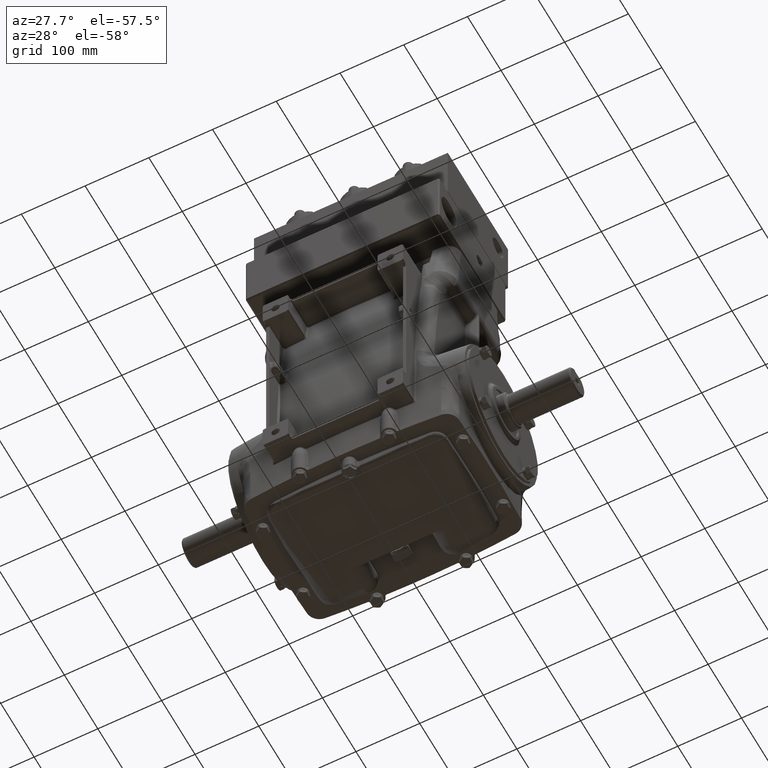
[diagram: clean part render]
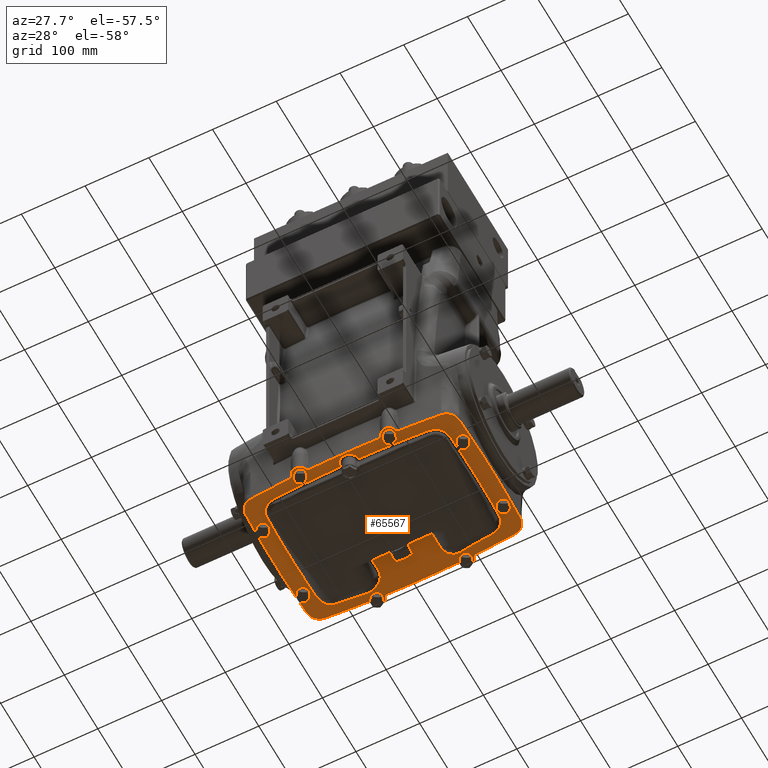
[diagram: same view with one face highlighted and labeled with its STEP entity id]
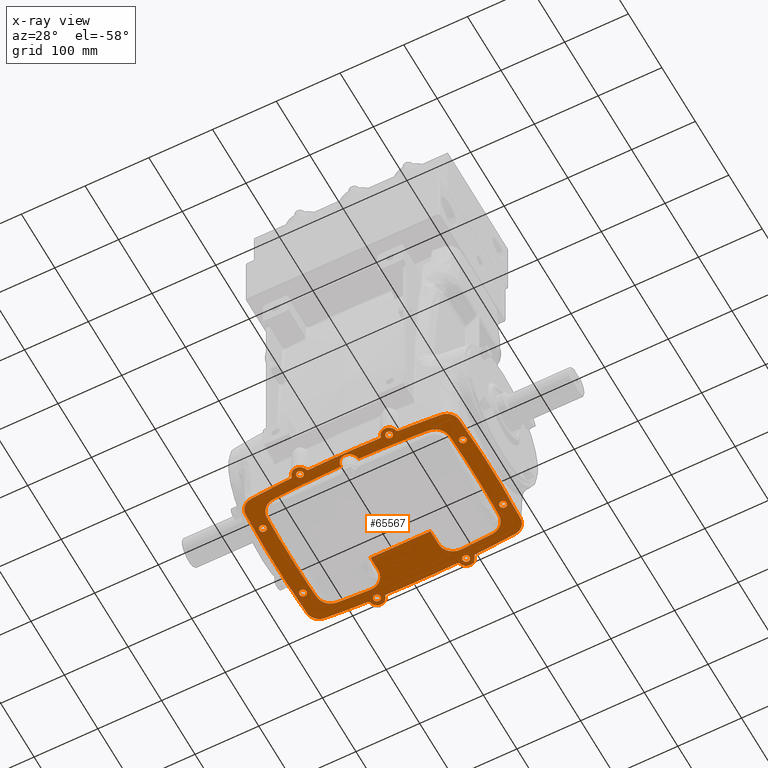
[diagram: x-ray of the same camera — body ghosted, the highlighted face saturated]
A machine part, auxiliary view. The second image highlights one B-rep face of the part: STEP entity #65567.
The next image is the same camera in x-ray: the body ghosted, the highlighted face saturated — about 0% of this face is hidden behind the body in this view.
In plain terms, the highlighted planar face has unit normal (0, -0, 1).
Its self-contained STEP definition (entity closure, byte-faithful):
#125 = ORIENTED_EDGE ( 'NONE', *, *, #73283, .T. ) ;
#469 = AXIS2_PLACEMENT_3D ( 'NONE', #3852, #22902, #40722 ) ;
#568 = CARTESIAN_POINT ( 'NONE',  ( -2.188326920457461355, 4.690670183305741148, -4.966535433070865757 ) ) ;
#848 = EDGE_CURVE ( 'NONE', #44584, #75379, #58259, .T. ) ;
#859 = DIRECTION ( 'NONE',  ( -1.000000000000000000, 0.000000000000000000, 0.000000000000000000 ) ) ;
#914 = CIRCLE ( 'NONE', #33233, 0.2165354330708663400 ) ;
#1171 = DIRECTION ( 'NONE',  ( 0.000000000000000000, -1.000000000000000000, -1.876433281056602322E-16 ) ) ;
#1330 = CARTESIAN_POINT ( 'NONE',  ( 1.850393700787401619, 1.963535253680850801, -4.966535433070865757 ) ) ;
#1344 = DIRECTION ( 'NONE',  ( 0.000000000000000000, -1.000000000000000000, 0.000000000000000000 ) ) ;
#1610 = VERTEX_POINT ( 'NONE', #40088 ) ;
#1611 = EDGE_CURVE ( 'NONE', #11891, #48762, #33780, .T. ) ;
#1652 = CIRCLE ( 'NONE', #53442, 70.86614173228348079 ) ;
#1884 = CIRCLE ( 'NONE', #32942, 70.86614173228346658 ) ;
#1887 = VERTEX_POINT ( 'NONE', #58240 ) ;
#2000 = ORIENTED_EDGE ( 'NONE', *, *, #34859, .T. ) ;
#2031 = EDGE_LOOP ( 'NONE', ( #49041, #19930 ) ) ;
#2227 = ORIENTED_EDGE ( 'NONE', *, *, #61398, .T. ) ;
#2432 = DIRECTION ( 'NONE',  ( -1.000000000000000000, 0.000000000000000000, 0.000000000000000000 ) ) ;
#2808 = ORIENTED_EDGE ( 'NONE', *, *, #78883, .T. ) ;
#2905 = VERTEX_POINT ( 'NONE', #80008 ) ;
#3014 = CIRCLE ( 'NONE', #65146, 0.2165354330708663400 ) ;
#3033 = DIRECTION ( 'NONE',  ( -1.000000000000000000, 0.000000000000000000, 0.000000000000000000 ) ) ;
#3112 = ORIENTED_EDGE ( 'NONE', *, *, #67851, .T. ) ;
#3489 = DIRECTION ( 'NONE',  ( -1.000000000000000000, 0.000000000000000000, 0.000000000000000000 ) ) ;
#3550 = ORIENTED_EDGE ( 'NONE', *, *, #53586, .T. ) ;
#3602 = DIRECTION ( 'NONE',  ( 0.000000000000000000, 0.000000000000000000, 1.000000000000000000 ) ) ;
#3807 = AXIS2_PLACEMENT_3D ( 'NONE', #23560, #11799, #28437 ) ;
#3833 = EDGE_LOOP ( 'NONE', ( #31478, #71639 ) ) ;
#3852 = CARTESIAN_POINT ( 'NONE',  ( -5.814147631272645000, -3.577293084386023114, -4.966535433070866645 ) ) ;
#3864 = CIRCLE ( 'NONE', #3807, 0.9055118110236217710 ) ;
#4589 = DIRECTION ( 'NONE',  ( -1.000000000000000000, 0.000000000000000000, 0.000000000000000000 ) ) ;
#4672 = CARTESIAN_POINT ( 'NONE',  ( 5.964566929133858331, 2.362204724409448620, -4.966535433070866645 ) ) ;
#4773 = AXIS2_PLACEMENT_3D ( 'NONE', #30553, #68212, #79958 ) ;
#5260 = CIRCLE ( 'NONE', #50533, 0.2165354330708663400 ) ;
#5393 = DIRECTION ( 'NONE',  ( 0.000000000000000000, -1.840508367162051595E-16, 1.000000000000000000 ) ) ;
#5597 = AXIS2_PLACEMENT_3D ( 'NONE', #13962, #38656, #57304 ) ;
#5645 = AXIS2_PLACEMENT_3D ( 'NONE', #48984, #42889, #23067 ) ;
#5699 = CIRCLE ( 'NONE', #75517, 0.2165354330708663400 ) ;
#5814 = CIRCLE ( 'NONE', #40673, 70.86614173228346658 ) ;
#5891 = VERTEX_POINT ( 'NONE', #13730 ) ;
#6125 = CARTESIAN_POINT ( 'NONE',  ( 0.000000000000000000, -66.25984251968503713, -4.966535433070879080 ) ) ;
#6419 = DIRECTION ( 'NONE',  ( -1.000000000000000000, 0.000000000000000000, 0.000000000000000000 ) ) ;
#6481 = CARTESIAN_POINT ( 'NONE',  ( -5.669151336525588114, 2.365579684614949052, -4.966535433070865757 ) ) ;
#6515 = DIRECTION ( 'NONE',  ( 0.000000000000000000, -1.000000000000000000, -1.868014062745636904E-16 ) ) ;
#6762 = DIRECTION ( 'NONE',  ( 1.000000000000000000, 0.000000000000000000, 0.000000000000000000 ) ) ;
#7053 = CARTESIAN_POINT ( 'NONE',  ( 4.421030236062490459, 3.797650276213888620, -4.966535433070865757 ) ) ;
#7071 = EDGE_CURVE ( 'NONE', #78797, #57188, #21784, .T. ) ;
#7156 = VERTEX_POINT ( 'NONE', #70778 ) ;
#7687 = ORIENTED_EDGE ( 'NONE', *, *, #73489, .F. ) ;
#7773 = ORIENTED_EDGE ( 'NONE', *, *, #75942, .T. ) ;
#7869 = CARTESIAN_POINT ( 'NONE',  ( -3.334447447247841367, 4.646049250672071196, -4.966535433070865757 ) ) ;
#8009 = DIRECTION ( 'NONE',  ( 0.000000000000000000, 0.000000000000000000, 1.000000000000000000 ) ) ;
#8071 = DIRECTION ( 'NONE',  ( 1.000000000000000000, 0.000000000000000000, 0.000000000000000000 ) ) ;
#8341 = EDGE_CURVE ( 'NONE', #57188, #78797, #46170, .T. ) ;
#8563 = CARTESIAN_POINT ( 'NONE',  ( 3.334447447247962604, 4.646049250672073860, -4.966535433070865757 ) ) ;
#8600 = EDGE_CURVE ( 'NONE', #40365, #60395, #57892, .T. ) ;
#8838 = ORIENTED_EDGE ( 'NONE', *, *, #28282, .T. ) ;
#8913 = DIRECTION ( 'NONE',  ( 0.000000000000000000, -1.840508367162051595E-16, 1.000000000000000000 ) ) ;
#9261 = ORIENTED_EDGE ( 'NONE', *, *, #70944, .T. ) ;
#9600 = EDGE_CURVE ( 'NONE', #44584, #25446, #54107, .T. ) ;
#10029 = DIRECTION ( 'NONE',  ( -0.000000000000000000, -0.000000000000000000, -1.000000000000000000 ) ) ;
#10275 = CARTESIAN_POINT ( 'NONE',  ( 5.879475132747619348, -4.361980001285704844, -4.966535433070866645 ) ) ;
#10314 = VERTEX_POINT ( 'NONE', #36026 ) ;
#10466 = ORIENTED_EDGE ( 'NONE', *, *, #27851, .T. ) ;
#10566 = DIRECTION ( 'NONE',  ( 1.000000000000000000, 0.000000000000000000, 0.000000000000000000 ) ) ;
#10578 = EDGE_LOOP ( 'NONE', ( #74037, #10466 ) ) ;
#10638 = EDGE_CURVE ( 'NONE', #57920, #30326, #77063, .T. ) ;
#10877 = CARTESIAN_POINT ( 'NONE',  ( -5.879475132747624677, 4.361980001285700403, -4.966535433070866645 ) ) ;
#10995 = ORIENTED_EDGE ( 'NONE', *, *, #67562, .T. ) ;
#11043 = EDGE_CURVE ( 'NONE', #1887, #64088, #12682, .T. ) ;
#11128 = CARTESIAN_POINT ( 'NONE',  ( 2.188326920457461355, -4.690670183305741148, -4.966535433070867533 ) ) ;
#11154 = CIRCLE ( 'NONE', #70708, 0.7874015748031557571 ) ;
#11504 = EDGE_CURVE ( 'NONE', #51423, #65314, #68300, .T. ) ;
#11737 = AXIS2_PLACEMENT_3D ( 'NONE', #7869, #52426, #26503 ) ;
#11799 = DIRECTION ( 'NONE',  ( 0.000000000000000000, -1.840508367162051595E-16, 1.000000000000000000 ) ) ;
#11891 = VERTEX_POINT ( 'NONE', #46021 ) ;
#11892 = CARTESIAN_POINT ( 'NONE',  ( -4.805447959170563443, -3.772332051060039326, -4.966535433070866645 ) ) ;
#11975 = VERTEX_POINT ( 'NONE', #54508 ) ;
#12229 = DIRECTION ( 'NONE',  ( -0.000000000000000000, -0.000000000000000000, -1.000000000000000000 ) ) ;
#12240 = EDGE_CURVE ( 'NONE', #40907, #74735, #30894, .T. ) ;
#12347 = DIRECTION ( 'NONE',  ( 0.000000000000000000, -1.840508367162051595E-16, 1.000000000000000000 ) ) ;
#12682 = CIRCLE ( 'NONE', #64385, 0.7874015748031557571 ) ;
#12697 = DIRECTION ( 'NONE',  ( 0.000000000000000000, 0.000000000000000000, 1.000000000000000000 ) ) ;
#12704 = DIRECTION ( 'NONE',  ( 0.000000000000000000, -1.000000000000000000, -1.840508367162051349E-16 ) ) ;
#12757 = VERTEX_POINT ( 'NONE', #4672 ) ;
#12858 = CARTESIAN_POINT ( 'NONE',  ( -2.755905511811023612, -4.527559055118110187, -4.966535433070866645 ) ) ;
#12895 = ORIENTED_EDGE ( 'NONE', *, *, #18476, .T. ) ;
#12909 = VERTEX_POINT ( 'NONE', #68241 ) ;
#12993 = DIRECTION ( 'NONE',  ( -0.000000000000000000, -0.000000000000000000, -1.000000000000000000 ) ) ;
#12996 = FACE_BOUND ( 'NONE', #2031, .T. ) ;
#13003 = ORIENTED_EDGE ( 'NONE', *, *, #848, .F. ) ;
#13092 = DIRECTION ( 'NONE',  ( 1.000000000000000000, 0.000000000000000000, 0.000000000000000000 ) ) ;
#13113 = DIRECTION ( 'NONE',  ( 0.000000000000000000, -1.000000000000000000, 0.000000000000000000 ) ) ;
#13203 = CARTESIAN_POINT ( 'NONE',  ( 6.397637795275591621, -2.362204724409448620, -4.966535433070866645 ) ) ;
#13204 = EDGE_LOOP ( 'NONE', ( #29628, #58196 ) ) ;
#13330 = AXIS2_PLACEMENT_3D ( 'NONE', #14726, #69812, #39434 ) ;
#13541 = ORIENTED_EDGE ( 'NONE', *, *, #39967, .T. ) ;
#13589 = ORIENTED_EDGE ( 'NONE', *, *, #53675, .F. ) ;
#13730 = CARTESIAN_POINT ( 'NONE',  ( 3.328899281778211261, -4.528069397476806479, -4.966535433070866645 ) ) ;
#13870 = CARTESIAN_POINT ( 'NONE',  ( 3.218739060160478171, -4.622351211561278816, -4.966535433070866645 ) ) ;
#13962 = CARTESIAN_POINT ( 'NONE',  ( -2.755905511811023612, -4.527559055118110187, -4.966535433070866645 ) ) ;
#14031 = CARTESIAN_POINT ( 'NONE',  ( -1.850393700787401619, 2.049347363287782997, -4.966535433070865757 ) ) ;
#14056 = VECTOR ( 'NONE', #20400, 39.37007874015748143 ) ;
#14282 = CARTESIAN_POINT ( 'NONE',  ( -2.791920186113100222, 3.881464759763229910, -4.966535433070865757 ) ) ;
#14584 = CARTESIAN_POINT ( 'NONE',  ( 0.000000000000000000, 66.25984251968503713, -4.966535433070866645 ) ) ;
#14588 = CARTESIAN_POINT ( 'NONE',  ( -1.968503937007874072, 3.818897637795274580, -4.966535433070865757 ) ) ;
#14609 = CIRCLE ( 'NONE', #31435, 0.1181102362204725503 ) ;
#14621 = AXIS2_PLACEMENT_3D ( 'NONE', #37194, #41388, #61932 ) ;
#14726 = CARTESIAN_POINT ( 'NONE',  ( -6.181102362204725864, -2.362204724409448620, -4.966535433070866645 ) ) ;
#15015 = CARTESIAN_POINT ( 'NONE',  ( -4.680861403990168590, 3.780556803092995466, -4.966535433070865757 ) ) ;
#15112 = CARTESIAN_POINT ( 'NONE',  ( -1.850393700787401619, 2.976669433107418605, -4.966535433070865757 ) ) ;
#15521 = EDGE_CURVE ( 'NONE', #26118, #19099, #55822, .T. ) ;
#15625 = DIRECTION ( 'NONE',  ( 0.000000000000000000, -1.840508367162051595E-16, 1.000000000000000000 ) ) ;
#15628 = CARTESIAN_POINT ( 'NONE',  ( 2.184685777495090075, 4.572616085630212268, -4.966535433070866645 ) ) ;
#15724 = AXIS2_PLACEMENT_3D ( 'NONE', #34076, #59599, #10566 ) ;
#15783 = DIRECTION ( 'NONE',  ( -0.000000000000000000, -0.000000000000000000, -1.000000000000000000 ) ) ;
#16190 = CIRCLE ( 'NONE', #78191, 0.9044357343902614810 ) ;
#16199 = CARTESIAN_POINT ( 'NONE',  ( 6.181102362204725864, -2.362204724409448620, -4.966535433070866645 ) ) ;
#16331 = DIRECTION ( 'NONE',  ( 0.000000000000000000, -1.840508367162051595E-16, 1.000000000000000000 ) ) ;
#16961 = ORIENTED_EDGE ( 'NONE', *, *, #58192, .T. ) ;
#16996 = ORIENTED_EDGE ( 'NONE', *, *, #29741, .T. ) ;
#17145 = CARTESIAN_POINT ( 'NONE',  ( 3.334447447247841367, -4.646049250672071196, -4.966535433070867533 ) ) ;
#17472 = CARTESIAN_POINT ( 'NONE',  ( -5.658791766379538402, 2.636854687209666981, -4.966535433070865757 ) ) ;
#17489 = CIRCLE ( 'NONE', #38139, 0.2165354330708663400 ) ;
#17690 = ORIENTED_EDGE ( 'NONE', *, *, #46238, .T. ) ;
#17708 = DIRECTION ( 'NONE',  ( -0.000000000000000000, -0.000000000000000000, -1.000000000000000000 ) ) ;
#17792 = VERTEX_POINT ( 'NONE', #77012 ) ;
#17882 = ORIENTED_EDGE ( 'NONE', *, *, #73342, .T. ) ;
#17947 = ORIENTED_EDGE ( 'NONE', *, *, #49992, .F. ) ;
#17990 = CARTESIAN_POINT ( 'NONE',  ( 5.647048271386203133, 2.908078252959397592, -4.966535433070865757 ) ) ;
#18007 = AXIS2_PLACEMENT_3D ( 'NONE', #46560, #3602, #53838 ) ;
#18186 = CARTESIAN_POINT ( 'NONE',  ( -6.600522642258374262, 3.617487388704967888, -4.966535433070866645 ) ) ;
#18363 = EDGE_LOOP ( 'NONE', ( #22792, #8838 ) ) ;
#18462 = DIRECTION ( 'NONE',  ( -1.000000000000000000, 0.000000000000000000, 0.000000000000000000 ) ) ;
#18476 = EDGE_CURVE ( 'NONE', #69947, #52454, #46842, .T. ) ;
#18675 = CARTESIAN_POINT ( 'NONE',  ( -2.972440944881889813, 4.527559055118110187, -4.966535433070866645 ) ) ;
#18985 = DIRECTION ( 'NONE',  ( 0.000000000000000000, -1.840508367162051595E-16, 1.000000000000000000 ) ) ;
#19099 = VERTEX_POINT ( 'NONE', #53582 ) ;
#19660 = ORIENTED_EDGE ( 'NONE', *, *, #7071, .F. ) ;
#19719 = CIRCLE ( 'NONE', #39134, 0.9055118110236221041 ) ;
#19754 = DIRECTION ( 'NONE',  ( -1.000000000000000000, 0.000000000000000000, 0.000000000000000000 ) ) ;
#19832 = ORIENTED_EDGE ( 'NONE', *, *, #46403, .T. ) ;
#19930 = ORIENTED_EDGE ( 'NONE', *, *, #26497, .T. ) ;
#20400 = DIRECTION ( 'NONE',  ( -0.000000000000000000, 1.000000000000000000, 1.840508367162051349E-16 ) ) ;
#20629 = ORIENTED_EDGE ( 'NONE', *, *, #8341, .F. ) ;
#20679 = FACE_BOUND ( 'NONE', #3833, .T. ) ;
#20703 = CARTESIAN_POINT ( 'NONE',  ( -4.421030236062486907, 3.797650276213888620, -4.966535433070865757 ) ) ;
#20880 = CIRCLE ( 'NONE', #15724, 0.4724409448818899238 ) ;
#21211 = CIRCLE ( 'NONE', #5645, 0.2165354330708663400 ) ;
#21732 = CARTESIAN_POINT ( 'NONE',  ( 5.647048271386203133, 2.908078252959397592, -4.966535433070865757 ) ) ;
#21744 = DIRECTION ( 'NONE',  ( -0.000000000000000000, -0.000000000000000000, -1.000000000000000000 ) ) ;
#21775 = CIRCLE ( 'NONE', #42469, 70.19685039370077106 ) ;
#21784 = CIRCLE ( 'NONE', #28255, 0.2165354330708663400 ) ;
#21953 = VERTEX_POINT ( 'NONE', #78930 ) ;
#22349 = VERTEX_POINT ( 'NONE', #61440 ) ;
#22627 = AXIS2_PLACEMENT_3D ( 'NONE', #74997, #32080, #53140 ) ;
#22792 = ORIENTED_EDGE ( 'NONE', *, *, #8600, .T. ) ;
#22845 = AXIS2_PLACEMENT_3D ( 'NONE', #69362, #68574, #13092 ) ;
#22902 = DIRECTION ( 'NONE',  ( 0.000000000000000000, 0.000000000000000000, 1.000000000000000000 ) ) ;
#22964 = DIRECTION ( 'NONE',  ( 1.000000000000000000, 0.000000000000000000, 0.000000000000000000 ) ) ;
#23067 = DIRECTION ( 'NONE',  ( 1.000000000000000000, 0.000000000000000000, 0.000000000000000000 ) ) ;
#23119 = CIRCLE ( 'NONE', #68379, 0.5511811023622046335 ) ;
#23132 = ORIENTED_EDGE ( 'NONE', *, *, #36138, .T. ) ;
#23256 = DIRECTION ( 'NONE',  ( -1.000000000000000000, -0.000000000000000000, 0.000000000000000000 ) ) ;
#23560 = CARTESIAN_POINT ( 'NONE',  ( 4.743459567100500429, -2.868944493501353499, -4.966535433070866645 ) ) ;
#23742 = CARTESIAN_POINT ( 'NONE',  ( -5.647048271386203133, 2.908078252959397592, -4.966535433070865757 ) ) ;
#23757 = VERTEX_POINT ( 'NONE', #50582 ) ;
#23858 = ORIENTED_EDGE ( 'NONE', *, *, #48441, .F. ) ;
#24052 = VERTEX_POINT ( 'NONE', #13203 ) ;
#24516 = DIRECTION ( 'NONE',  ( 0.000000000000000000, -1.000000000000000000, 0.000000000000000000 ) ) ;
#24838 = VERTEX_POINT ( 'NONE', #37905 ) ;
#25110 = EDGE_CURVE ( 'NONE', #47525, #33996, #14609, .T. ) ;
#25303 = ORIENTED_EDGE ( 'NONE', *, *, #67246, .T. ) ;
#25446 = VERTEX_POINT ( 'NONE', #47910 ) ;
#25495 = ORIENTED_EDGE ( 'NONE', *, *, #10638, .T. ) ;
#25512 = DIRECTION ( 'NONE',  ( 0.000000000000000000, 0.000000000000000000, 1.000000000000000000 ) ) ;
#25636 = CARTESIAN_POINT ( 'NONE',  ( -5.648187776011354799, -2.906607577605502257, -4.966535433070866645 ) ) ;
#25647 = DIRECTION ( 'NONE',  ( 0.000000000000000000, -1.000000000000000000, -1.876433281056602322E-16 ) ) ;
#25693 = AXIS2_PLACEMENT_3D ( 'NONE', #14588, #50261, #44577 ) ;
#25803 = EDGE_CURVE ( 'NONE', #49282, #47525, #34094, .T. ) ;
#25884 = EDGE_LOOP ( 'NONE', ( #47802, #28352, #72604, #25303, #73336, #37086, #17690, #62492, #62848, #49409, #38493, #54427, #13589, #10995, #63889, #16996, #72837, #71476, #68748, #7687, #23858, #3550, #13003, #53822 ) ) ;
#26118 = VERTEX_POINT ( 'NONE', #15628 ) ;
#26337 = DIRECTION ( 'NONE',  ( 0.000000000000000000, -1.000000000000000000, -1.868014062745636904E-16 ) ) ;
#26497 = EDGE_CURVE ( 'NONE', #22349, #68828, #76628, .T. ) ;
#26503 = DIRECTION ( 'NONE',  ( 0.000000000000000000, -1.000000000000000000, 0.000000000000000000 ) ) ;
#26513 = AXIS2_PLACEMENT_3D ( 'NONE', #67902, #78827, #22964 ) ;
#26624 = CARTESIAN_POINT ( 'NONE',  ( -2.755905511811023612, 4.527559055118110187, -4.966535433070866645 ) ) ;
#26625 = DIRECTION ( 'NONE',  ( -0.000000000000000000, -0.000000000000000000, -1.000000000000000000 ) ) ;
#26767 = CARTESIAN_POINT ( 'NONE',  ( 5.814147631272645000, -3.577293084386023114, -4.966535433070866645 ) ) ;
#26823 = VERTEX_POINT ( 'NONE', #28389 ) ;
#26934 = EDGE_CURVE ( 'NONE', #68828, #22349, #27562, .T. ) ;
#27199 = DIRECTION ( 'NONE',  ( 0.000000000000000000, -1.840508367162051595E-16, 1.000000000000000000 ) ) ;
#27341 = CARTESIAN_POINT ( 'NONE',  ( -4.743459567100491547, 2.868944493501349058, -4.966535433070865757 ) ) ;
#27562 = CIRCLE ( 'NONE', #77957, 0.2165354330708663400 ) ;
#27686 = DIRECTION ( 'NONE',  ( 0.000000000000000000, -1.000000000000000000, 0.000000000000000000 ) ) ;
#27851 = EDGE_CURVE ( 'NONE', #67507, #7156, #21211, .T. ) ;
#27857 = DIRECTION ( 'NONE',  ( 1.000000000000000000, 0.000000000000000000, 0.000000000000000000 ) ) ;
#28255 = AXIS2_PLACEMENT_3D ( 'NONE', #68479, #12993, #37680 ) ;
#28265 = CARTESIAN_POINT ( 'NONE',  ( -2.755905511811023612, 4.527559055118110187, -4.966535433070866645 ) ) ;
#28282 = EDGE_CURVE ( 'NONE', #60395, #40365, #5699, .T. ) ;
#28352 = ORIENTED_EDGE ( 'NONE', *, *, #15521, .T. ) ;
#28380 = CARTESIAN_POINT ( 'NONE',  ( -5.964566929133859219, -2.362204724409448620, -4.966535433070866645 ) ) ;
#28389 = CARTESIAN_POINT ( 'NONE',  ( -4.810699160858283641, 3.770877326185321898, -4.966535433070865757 ) ) ;
#28437 = DIRECTION ( 'NONE',  ( 0.000000000000000000, -1.000000000000000000, 0.000000000000000000 ) ) ;
#28506 = CIRCLE ( 'NONE', #11737, 0.1181102362204725503 ) ;
#28593 = CARTESIAN_POINT ( 'NONE',  ( 0.000000000000000000, -4.488188976377952777, -4.966535433070410122 ) ) ;
#28753 = CARTESIAN_POINT ( 'NONE',  ( 2.755905511811023612, 4.527559055118110187, -4.966535433070866645 ) ) ;
#28911 = CARTESIAN_POINT ( 'NONE',  ( 0.000000000000000000, 66.25984251968503713, -4.966535433070866645 ) ) ;
#28943 = CARTESIAN_POINT ( 'NONE',  ( 5.814147631272645000, 3.577293084386023114, -4.966535433070866645 ) ) ;
#29091 = EDGE_CURVE ( 'NONE', #23757, #55862, #5814, .T. ) ;
#29318 = CARTESIAN_POINT ( 'NONE',  ( 5.669151336525589002, 2.365579684614937950, -4.966535433070865757 ) ) ;
#29628 = ORIENTED_EDGE ( 'NONE', *, *, #74135, .F. ) ;
#29741 = EDGE_CURVE ( 'NONE', #41375, #48762, #75751, .T. ) ;
#30309 = CARTESIAN_POINT ( 'NONE',  ( -3.328899281778332053, -4.528069397476797597, -4.966535433070866645 ) ) ;
#30326 = VERTEX_POINT ( 'NONE', #76764 ) ;
#30342 = DIRECTION ( 'NONE',  ( 0.000000000000000000, -1.000000000000000000, 0.000000000000000000 ) ) ;
#30553 = CARTESIAN_POINT ( 'NONE',  ( -4.743459567100500429, -2.868944493501353499, -4.966535433070866645 ) ) ;
#30894 = CIRCLE ( 'NONE', #36029, 70.19685039370077106 ) ;
#31435 = AXIS2_PLACEMENT_3D ( 'NONE', #11128, #35828, #49991 ) ;
#31478 = ORIENTED_EDGE ( 'NONE', *, *, #40368, .F. ) ;
#31561 = CARTESIAN_POINT ( 'NONE',  ( -6.181102362204724976, 2.362204724409448620, -4.966535433070866645 ) ) ;
#31749 = CARTESIAN_POINT ( 'NONE',  ( -2.539370078740156966, -4.527559055118110187, -4.966535433070866645 ) ) ;
#31899 = CARTESIAN_POINT ( 'NONE',  ( 2.755905511811023612, -4.527559055118110187, -4.966535433070866645 ) ) ;
#32080 = DIRECTION ( 'NONE',  ( 0.000000000000000000, -1.840508367162051595E-16, 1.000000000000000000 ) ) ;
#32407 = FACE_BOUND ( 'NONE', #65797, .T. ) ;
#32441 = B_SPLINE_CURVE_WITH_KNOTS ( 'NONE', 3,
 ( #72278, #29318, #71872, #17990 ),
 .UNSPECIFIED., .F., .F.,
 ( 4, 4 ),
 ( 0.000000000000000000, 0.02068621191745178070 ),
 .UNSPECIFIED. ) ;
#32618 = VERTEX_POINT ( 'NONE', #58306 ) ;
#32669 = VERTEX_POINT ( 'NONE', #10877 ) ;
#32942 = AXIS2_PLACEMENT_3D ( 'NONE', #56707, #25512, #8071 ) ;
#33233 = AXIS2_PLACEMENT_3D ( 'NONE', #53767, #66318, #78430 ) ;
#33752 = CARTESIAN_POINT ( 'NONE',  ( 2.188326920457581259, 4.690670183305729601, -4.966535433070865757 ) ) ;
#33780 = CIRCLE ( 'NONE', #47851, 70.86614173228346658 ) ;
#33815 = AXIS2_PLACEMENT_3D ( 'NONE', #28943, #45985, #3033 ) ;
#33996 = VERTEX_POINT ( 'NONE', #61055 ) ;
#34076 = CARTESIAN_POINT ( 'NONE',  ( -2.755905511811023612, -4.527559055118110187, -4.966535433070866645 ) ) ;
#34094 = CIRCLE ( 'NONE', #52033, 0.4724409448818899238 ) ;
#34327 = DIRECTION ( 'NONE',  ( 0.000000000000000000, 0.000000000000000000, 1.000000000000000000 ) ) ;
#34460 = AXIS2_PLACEMENT_3D ( 'NONE', #55859, #37196, #6419 ) ;
#34745 = CIRCLE ( 'NONE', #18007, 70.86614173228348079 ) ;
#34859 = EDGE_CURVE ( 'NONE', #17792, #32618, #21775, .T. ) ;
#35111 = VERTEX_POINT ( 'NONE', #50002 ) ;
#35758 = CARTESIAN_POINT ( 'NONE',  ( 6.600522642258374262, 3.617487388704967888, -4.966535433070866645 ) ) ;
#35828 = DIRECTION ( 'NONE',  ( 0.000000000000000000, -1.840508367162051595E-16, 1.000000000000000000 ) ) ;
#36026 = CARTESIAN_POINT ( 'NONE',  ( -2.972440944881889813, -4.527559055118110187, -4.966535433070866645 ) ) ;
#36027 = AXIS2_PLACEMENT_3D ( 'NONE', #17145, #16331, #78677 ) ;
#36029 = AXIS2_PLACEMENT_3D ( 'NONE', #6125, #36109, #6515 ) ;
#36109 = DIRECTION ( 'NONE',  ( 0.000000000000000000, -1.840508367162051595E-16, 1.000000000000000000 ) ) ;
#36138 = EDGE_CURVE ( 'NONE', #1610, #58683, #37548, .T. ) ;
#37086 = ORIENTED_EDGE ( 'NONE', *, *, #43939, .T. ) ;
#37108 = DIRECTION ( 'NONE',  ( -1.000000000000000000, 0.000000000000000000, 0.000000000000000000 ) ) ;
#37194 = CARTESIAN_POINT ( 'NONE',  ( 6.181102362204724976, 2.362204724409448620, -4.966535433070866645 ) ) ;
#37196 = DIRECTION ( 'NONE',  ( -0.000000000000000000, -0.000000000000000000, -1.000000000000000000 ) ) ;
#37548 = CIRCLE ( 'NONE', #44039, 69.88188976377954020 ) ;
#37680 = DIRECTION ( 'NONE',  ( -1.000000000000000000, 0.000000000000000000, 0.000000000000000000 ) ) ;
#37905 = CARTESIAN_POINT ( 'NONE',  ( -3.328899281778211261, 4.528069397476806479, -4.966535433070866645 ) ) ;
#38120 = CIRCLE ( 'NONE', #75646, 70.19685039370077106 ) ;
#38139 = AXIS2_PLACEMENT_3D ( 'NONE', #51734, #21744, #3489 ) ;
#38198 = CARTESIAN_POINT ( 'NONE',  ( -3.334447447247962604, -4.646049250672073860, -4.966535433070867533 ) ) ;
#38414 = CIRCLE ( 'NONE', #4773, 0.9055118110236217710 ) ;
#38493 = ORIENTED_EDGE ( 'NONE', *, *, #25803, .T. ) ;
#38502 = CARTESIAN_POINT ( 'NONE',  ( -4.810699160858283641, 3.770877326185321898, -4.966535433070865757 ) ) ;
#38656 = DIRECTION ( 'NONE',  ( 0.000000000000000000, 0.000000000000000000, 1.000000000000000000 ) ) ;
#38734 = CARTESIAN_POINT ( 'NONE',  ( 5.964566929133859219, -2.362204724409448620, -4.966535433070866645 ) ) ;
#38753 = EDGE_CURVE ( 'NONE', #5891, #49282, #56732, .T. ) ;
#39032 = EDGE_CURVE ( 'NONE', #49838, #53444, #34745, .T. ) ;
#39134 = AXIS2_PLACEMENT_3D ( 'NONE', #41535, #12347, #24516 ) ;
#39255 = CIRCLE ( 'NONE', #53519, 0.1181102362204725503 ) ;
#39376 = B_SPLINE_CURVE_WITH_KNOTS ( 'NONE', 3,
 ( #49630, #50803, #74691, #7053 ),
 .UNSPECIFIED., .F., .F.,
 ( 4, 4 ),
 ( 0.000000000000000000, 0.009920924667084263932 ),
 .UNSPECIFIED. ) ;
#39426 = DIRECTION ( 'NONE',  ( 0.000000000000000000, -1.000000000000000000, 0.000000000000000000 ) ) ;
#39434 = DIRECTION ( 'NONE',  ( 1.000000000000000000, 0.000000000000000000, 0.000000000000000000 ) ) ;
#39861 = VERTEX_POINT ( 'NONE', #11892 ) ;
#39967 = EDGE_CURVE ( 'NONE', #74419, #1610, #3864, .T. ) ;
#40088 = CARTESIAN_POINT ( 'NONE',  ( 5.648187776011354799, -2.906607577605502257, -4.966535433070866645 ) ) ;
#40240 = ORIENTED_EDGE ( 'NONE', *, *, #54690, .T. ) ;
#40365 = VERTEX_POINT ( 'NONE', #47378 ) ;
#40368 = EDGE_CURVE ( 'NONE', #70178, #24052, #45223, .T. ) ;
#40673 = AXIS2_PLACEMENT_3D ( 'NONE', #78844, #17708, #37108 ) ;
#40722 = DIRECTION ( 'NONE',  ( -1.000000000000000000, 0.000000000000000000, 0.000000000000000000 ) ) ;
#40907 = VERTEX_POINT ( 'NONE', #14282 ) ;
#41069 = EDGE_LOOP ( 'NONE', ( #56497, #17947 ) ) ;
#41375 = VERTEX_POINT ( 'NONE', #42101 ) ;
#41388 = DIRECTION ( 'NONE',  ( -0.000000000000000000, -0.000000000000000000, -1.000000000000000000 ) ) ;
#41535 = CARTESIAN_POINT ( 'NONE',  ( 2.755905511811024056, 2.976669433107418605, -4.966535433070865757 ) ) ;
#42079 = VECTOR ( 'NONE', #12704, 39.37007874015748143 ) ;
#42101 = CARTESIAN_POINT ( 'NONE',  ( -3.218739060160481280, -4.622351211561261941, -4.966535433070866645 ) ) ;
#42396 = CARTESIAN_POINT ( 'NONE',  ( 2.972440944881889813, 4.527559055118110187, -4.966535433070866645 ) ) ;
#42412 = AXIS2_PLACEMENT_3D ( 'NONE', #568, #56840, #1344 ) ;
#42469 = AXIS2_PLACEMENT_3D ( 'NONE', #45211, #15625, #46815 ) ;
#42889 = DIRECTION ( 'NONE',  ( 0.000000000000000000, 0.000000000000000000, 1.000000000000000000 ) ) ;
#43299 = CARTESIAN_POINT ( 'NONE',  ( 0.000000000000000000, -3.937007874015748143, -4.966535433070866645 ) ) ;
#43345 = DIRECTION ( 'NONE',  ( 0.000000000000000000, -1.840508367162051595E-16, 1.000000000000000000 ) ) ;
#43402 = AXIS2_PLACEMENT_3D ( 'NONE', #38198, #43894, #13113 ) ;
#43785 = ORIENTED_EDGE ( 'NONE', *, *, #12240, .T. ) ;
#43894 = DIRECTION ( 'NONE',  ( 0.000000000000000000, -1.840508367162051595E-16, 1.000000000000000000 ) ) ;
#43939 = EDGE_CURVE ( 'NONE', #55862, #52811, #57069, .T. ) ;
#43938 = AXIS2_PLACEMENT_3D ( 'NONE', #16199, #15783, #59130 ) ;
#44039 = AXIS2_PLACEMENT_3D ( 'NONE', #68982, #51972, #25647 ) ;
#44052 = CIRCLE ( 'NONE', #76362, 70.86614173228346658 ) ;
#44173 = FACE_BOUND ( 'NONE', #41069, .T. ) ;
#44576 = CARTESIAN_POINT ( 'NONE',  ( 0.000000000000000000, 66.25984251968503713, -4.966535433070855099 ) ) ;
#44577 = DIRECTION ( 'NONE',  ( 0.000000000000000000, -1.000000000000000000, -1.840508367162051349E-16 ) ) ;
#44584 = VERTEX_POINT ( 'NONE', #46893 ) ;
#44608 = DIRECTION ( 'NONE',  ( -0.000000000000000000, -0.000000000000000000, -1.000000000000000000 ) ) ;
#44977 = FACE_BOUND ( 'NONE', #78133, .T. ) ;
#45211 = CARTESIAN_POINT ( 'NONE',  ( 0.000000000000000000, -66.25984251968503713, -4.966535433070879080 ) ) ;
#45223 = CIRCLE ( 'NONE', #43938, 0.2165354330708663400 ) ;
#45382 = FACE_OUTER_BOUND ( 'NONE', #25884, .T. ) ;
#45515 = DIRECTION ( 'NONE',  ( 0.000000000000000000, -1.840508367162051595E-16, 1.000000000000000000 ) ) ;
#45542 = CARTESIAN_POINT ( 'NONE',  ( -6.600522642258387584, -3.617487388704948792, -4.966535433070866645 ) ) ;
#45678 = CIRCLE ( 'NONE', #5597, 0.2165354330708663400 ) ;
#45701 = CIRCLE ( 'NONE', #50834, 0.1181102362204725503 ) ;
#45985 = DIRECTION ( 'NONE',  ( -0.000000000000000000, -0.000000000000000000, -1.000000000000000000 ) ) ;
#46021 = CARTESIAN_POINT ( 'NONE',  ( -5.879475132747619348, -4.361980001285704844, -4.966535433070866645 ) ) ;
#46170 = CIRCLE ( 'NONE', #53990, 0.2165354330708663400 ) ;
#46238 = EDGE_CURVE ( 'NONE', #52811, #1887, #1652, .T. ) ;
#46318 = CARTESIAN_POINT ( 'NONE',  ( 2.539370078740156966, 4.527559055118110187, -4.966535433070866645 ) ) ;
#46377 = DIRECTION ( 'NONE',  ( 0.000000000000000000, 0.000000000000000000, 1.000000000000000000 ) ) ;
#46403 = EDGE_CURVE ( 'NONE', #10314, #78616, #45678, .T. ) ;
#46560 = CARTESIAN_POINT ( 'NONE',  ( 64.17322834645671037, 0.000000000000000000, -4.966535433070866645 ) ) ;
#46815 = DIRECTION ( 'NONE',  ( 0.000000000000000000, -1.000000000000000000, -1.868014062745636904E-16 ) ) ;
#46842 = CIRCLE ( 'NONE', #64954, 0.5511811023622046335 ) ;
#46893 = CARTESIAN_POINT ( 'NONE',  ( -2.301842638728265111, 4.658047957668189021, -4.966535433070866645 ) ) ;
#47183 = DIRECTION ( 'NONE',  ( 0.000000000000000000, -1.000000000000000000, 0.000000000000000000 ) ) ;
#47378 = CARTESIAN_POINT ( 'NONE',  ( -2.539370078740156966, 4.527559055118110187, -4.966535433070866645 ) ) ;
#47525 = VERTEX_POINT ( 'NONE', #76632 ) ;
#47547 = CARTESIAN_POINT ( 'NONE',  ( 0.000000000000000000, 66.25984251968503713, -4.966535433070855099 ) ) ;
#47802 = ORIENTED_EDGE ( 'NONE', *, *, #60759, .F. ) ;
#47851 = AXIS2_PLACEMENT_3D ( 'NONE', #14584, #51456, #2432 ) ;
#47910 = CARTESIAN_POINT ( 'NONE',  ( -2.184685777494969727, 4.572616085630212268, -4.966535433070866645 ) ) ;
#48441 = EDGE_CURVE ( 'NONE', #24838, #32669, #1884, .T. ) ;
#48512 = CIRCLE ( 'NONE', #26513, 70.86614173228346658 ) ;
#48762 = VERTEX_POINT ( 'NONE', #30309 ) ;
#48984 = CARTESIAN_POINT ( 'NONE',  ( -6.181102362204724976, 2.362204724409448620, -4.966535433070866645 ) ) ;
#49041 = ORIENTED_EDGE ( 'NONE', *, *, #26934, .T. ) ;
#49282 = VERTEX_POINT ( 'NONE', #13870 ) ;
#49409 = ORIENTED_EDGE ( 'NONE', *, *, #38753, .T. ) ;
#49442 = ORIENTED_EDGE ( 'NONE', *, *, #50820, .T. ) ;
#49630 = CARTESIAN_POINT ( 'NONE',  ( 4.810699160858311174, 3.770877326185322787, -4.966535433070865757 ) ) ;
#49838 = VERTEX_POINT ( 'NONE', #18186 ) ;
#49991 = DIRECTION ( 'NONE',  ( 0.000000000000000000, -1.000000000000000000, 0.000000000000000000 ) ) ;
#49992 = EDGE_CURVE ( 'NONE', #11975, #57823, #66565, .T. ) ;
#50002 = CARTESIAN_POINT ( 'NONE',  ( 1.850393700787401619, 2.049347363287782997, -4.966535433070865757 ) ) ;
#50261 = DIRECTION ( 'NONE',  ( 0.000000000000000000, -1.840508367162051349E-16, 1.000000000000000000 ) ) ;
#50533 = AXIS2_PLACEMENT_3D ( 'NONE', #31561, #69615, #50598 ) ;
#50582 = CARTESIAN_POINT ( 'NONE',  ( 3.328899281778332053, 4.528069397476797597, -4.966535433070866645 ) ) ;
#50598 = DIRECTION ( 'NONE',  ( 1.000000000000000000, 0.000000000000000000, 0.000000000000000000 ) ) ;
#50803 = CARTESIAN_POINT ( 'NONE',  ( 4.680861403990189018, 3.780556803092995022, -4.966535433070865757 ) ) ;
#50820 = EDGE_CURVE ( 'NONE', #39861, #69947, #38120, .T. ) ;
#50834 = AXIS2_PLACEMENT_3D ( 'NONE', #8563, #27199, #70541 ) ;
#51006 = CIRCLE ( 'NONE', #22627, 0.9055118110236221041 ) ;
#51103 = EDGE_CURVE ( 'NONE', #57823, #11975, #69383, .T. ) ;
#51423 = VERTEX_POINT ( 'NONE', #71919 ) ;
#51456 = DIRECTION ( 'NONE',  ( 0.000000000000000000, 0.000000000000000000, 1.000000000000000000 ) ) ;
#51661 = DIRECTION ( 'NONE',  ( 0.000000000000000000, -1.840508367162051595E-16, 1.000000000000000000 ) ) ;
#51691 = AXIS2_PLACEMENT_3D ( 'NONE', #71825, #45515, #39426 ) ;
#51734 = CARTESIAN_POINT ( 'NONE',  ( 6.181102362204725864, -2.362204724409448620, -4.966535433070866645 ) ) ;
#51931 = EDGE_CURVE ( 'NONE', #7156, #67507, #5260, .T. ) ;
#51972 = DIRECTION ( 'NONE',  ( 0.000000000000000000, -1.840508367162051595E-16, 1.000000000000000000 ) ) ;
#52033 = AXIS2_PLACEMENT_3D ( 'NONE', #79669, #10029, #54200 ) ;
#52426 = DIRECTION ( 'NONE',  ( 0.000000000000000000, -1.840508367162051595E-16, 1.000000000000000000 ) ) ;
#52454 = VERTEX_POINT ( 'NONE', #28593 ) ;
#52811 = VERTEX_POINT ( 'NONE', #35758 ) ;
#53140 = DIRECTION ( 'NONE',  ( 0.000000000000000000, -1.000000000000000000, 0.000000000000000000 ) ) ;
#53215 = VERTEX_POINT ( 'NONE', #21732 ) ;
#53228 = AXIS2_PLACEMENT_3D ( 'NONE', #33752, #53615, #27686 ) ;
#53267 = CARTESIAN_POINT ( 'NONE',  ( -2.755905511811023612, 4.527559055118110187, -4.966535433070866645 ) ) ;
#53442 = AXIS2_PLACEMENT_3D ( 'NONE', #62586, #56503, #18462 ) ;
#53444 = VERTEX_POINT ( 'NONE', #45542 ) ;
#53519 = AXIS2_PLACEMENT_3D ( 'NONE', #55906, #43345, #55119 ) ;
#53582 = CARTESIAN_POINT ( 'NONE',  ( 2.301842638728269996, 4.658047957668205896, -4.966535433070866645 ) ) ;
#53586 = EDGE_CURVE ( 'NONE', #24838, #75379, #28506, .T. ) ;
#53608 = EDGE_CURVE ( 'NONE', #56495, #74419, #68622, .T. ) ;
#53615 = DIRECTION ( 'NONE',  ( 0.000000000000000000, -1.840508367162051595E-16, 1.000000000000000000 ) ) ;
#53675 = EDGE_CURVE ( 'NONE', #63199, #33996, #44052, .T. ) ;
#53767 = CARTESIAN_POINT ( 'NONE',  ( 6.181102362204724976, 2.362204724409448620, -4.966535433070866645 ) ) ;
#53822 = ORIENTED_EDGE ( 'NONE', *, *, #9600, .T. ) ;
#53838 = DIRECTION ( 'NONE',  ( 1.000000000000000000, 0.000000000000000000, 0.000000000000000000 ) ) ;
#53990 = AXIS2_PLACEMENT_3D ( 'NONE', #28753, #59148, #72900 ) ;
#54107 = CIRCLE ( 'NONE', #42412, 0.1181102362204725503 ) ;
#54200 = DIRECTION ( 'NONE',  ( -1.000000000000000000, 0.000000000000000000, 0.000000000000000000 ) ) ;
#54427 = ORIENTED_EDGE ( 'NONE', *, *, #25110, .T. ) ;
#54494 = EDGE_CURVE ( 'NONE', #41375, #21953, #20880, .T. ) ;
#54508 = CARTESIAN_POINT ( 'NONE',  ( 2.972440944881889813, -4.527559055118110187, -4.966535433070866645 ) ) ;
#54690 = EDGE_CURVE ( 'NONE', #60058, #51423, #61238, .T. ) ;
#55058 = B_SPLINE_CURVE_WITH_KNOTS ( 'NONE', 3,
 ( #20703, #70516, #15015, #38502 ),
 .UNSPECIFIED., .F., .F.,
 ( 4, 4 ),
 ( 1.387778780781445521E-17, 0.009920924667083667187 ),
 .UNSPECIFIED. ) ;
#55119 = DIRECTION ( 'NONE',  ( 0.000000000000000000, -1.000000000000000000, 0.000000000000000000 ) ) ;
#55127 = CARTESIAN_POINT ( 'NONE',  ( -2.184685777495090075, -4.572616085630212268, -4.966535433070866645 ) ) ;
#55344 = ORIENTED_EDGE ( 'NONE', *, *, #78325, .T. ) ;
#55434 = AXIS2_PLACEMENT_3D ( 'NONE', #56671, #64763, #1171 ) ;
#55822 = CIRCLE ( 'NONE', #53228, 0.1181102362204725503 ) ;
#55859 = CARTESIAN_POINT ( 'NONE',  ( 2.755905511811023612, -4.527559055118110187, -4.966535433070866645 ) ) ;
#55862 = VERTEX_POINT ( 'NONE', #56237 ) ;
#55906 = CARTESIAN_POINT ( 'NONE',  ( -2.188326920457581259, -4.690670183305729601, -4.966535433070867533 ) ) ;
#55918 = CARTESIAN_POINT ( 'NONE',  ( -5.647048271386203133, 2.908078252959397592, -4.966535433070865757 ) ) ;
#56195 = AXIS2_PLACEMENT_3D ( 'NONE', #31899, #26625, #19754 ) ;
#56237 = CARTESIAN_POINT ( 'NONE',  ( 5.879475132747624677, 4.361980001285700403, -4.966535433070866645 ) ) ;
#56357 = CARTESIAN_POINT ( 'NONE',  ( 2.755905511811023612, 4.527559055118110187, -4.966535433070866645 ) ) ;
#56495 = VERTEX_POINT ( 'NONE', #64613 ) ;
#56497 = ORIENTED_EDGE ( 'NONE', *, *, #51103, .F. ) ;
#56503 = DIRECTION ( 'NONE',  ( -0.000000000000000000, -0.000000000000000000, -1.000000000000000000 ) ) ;
#56671 = CARTESIAN_POINT ( 'NONE',  ( 64.17322834645669616, -2.173828780112658556E-17, -4.966535433070866645 ) ) ;
#56707 = CARTESIAN_POINT ( 'NONE',  ( 0.000000000000000000, -66.25984251968503713, -4.966535433070866645 ) ) ;
#56732 = CIRCLE ( 'NONE', #36027, 0.1181102362204725503 ) ;
#56840 = DIRECTION ( 'NONE',  ( 0.000000000000000000, -1.840508367162051595E-16, 1.000000000000000000 ) ) ;
#56962 = EDGE_CURVE ( 'NONE', #57014, #12757, #61247, .T. ) ;
#57014 = VERTEX_POINT ( 'NONE', #75636 ) ;
#57069 = CIRCLE ( 'NONE', #33815, 0.7874015748031557571 ) ;
#57129 = PLANE ( 'NONE',  #25693 ) ;
#57188 = VERTEX_POINT ( 'NONE', #42396 ) ;
#57304 = DIRECTION ( 'NONE',  ( 1.000000000000000000, 0.000000000000000000, 0.000000000000000000 ) ) ;
#57486 = EDGE_CURVE ( 'NONE', #53444, #11891, #72921, .T. ) ;
#57530 = FACE_BOUND ( 'NONE', #18363, .T. ) ;
#57560 = DIRECTION ( 'NONE',  ( 1.000000000000000000, 0.000000000000000000, 0.000000000000000000 ) ) ;
#57754 = CIRCLE ( 'NONE', #22845, 70.86614173228346658 ) ;
#57823 = VERTEX_POINT ( 'NONE', #78468 ) ;
#57892 = CIRCLE ( 'NONE', #74698, 0.2165354330708663400 ) ;
#57920 = VERTEX_POINT ( 'NONE', #14031 ) ;
#58192 = EDGE_CURVE ( 'NONE', #58861, #17792, #39376, .T. ) ;
#58196 = ORIENTED_EDGE ( 'NONE', *, *, #56962, .F. ) ;
#58224 = DIRECTION ( 'NONE',  ( 1.000000000000000000, 0.000000000000000000, 0.000000000000000000 ) ) ;
#58240 = CARTESIAN_POINT ( 'NONE',  ( 6.600522642258387584, -3.617487388704948792, -4.966535433070866645 ) ) ;
#58259 = CIRCLE ( 'NONE', #72487, 0.4724409448818899238 ) ;
#58306 = CARTESIAN_POINT ( 'NONE',  ( 2.791920186113100222, 3.881464759763229910, -4.966535433070865757 ) ) ;
#58683 = VERTEX_POINT ( 'NONE', #70135 ) ;
#58735 = DIRECTION ( 'NONE',  ( 0.000000000000000000, -1.000000000000000000, 0.000000000000000000 ) ) ;
#58861 = VERTEX_POINT ( 'NONE', #77389 ) ;
#59130 = DIRECTION ( 'NONE',  ( -1.000000000000000000, 0.000000000000000000, 0.000000000000000000 ) ) ;
#59148 = DIRECTION ( 'NONE',  ( -0.000000000000000000, -0.000000000000000000, -1.000000000000000000 ) ) ;
#59451 = CARTESIAN_POINT ( 'NONE',  ( -3.218739060160478171, 4.622351211561278816, -4.966535433070866645 ) ) ;
#59599 = DIRECTION ( 'NONE',  ( 0.000000000000000000, 0.000000000000000000, 1.000000000000000000 ) ) ;
#60058 = VERTEX_POINT ( 'NONE', #23742 ) ;
#60395 = VERTEX_POINT ( 'NONE', #18675 ) ;
#60759 = EDGE_CURVE ( 'NONE', #26118, #25446, #48512, .T. ) ;
#60794 = CARTESIAN_POINT ( 'NONE',  ( -4.421030236062486907, 3.797650276213888620, -4.966535433070865757 ) ) ;
#60800 = CARTESIAN_POINT ( 'NONE',  ( -5.677274531687664272, 2.094221723548157055, -4.966535433070865757 ) ) ;
#61055 = CARTESIAN_POINT ( 'NONE',  ( 2.184685777494969727, -4.572616085630212268, -4.966535433070866645 ) ) ;
#61087 = EDGE_CURVE ( 'NONE', #26823, #60058, #16190, .T. ) ;
#61238 = B_SPLINE_CURVE_WITH_KNOTS ( 'NONE', 3,
 ( #55918, #17472, #6481, #60800 ),
 .UNSPECIFIED., .F., .F.,
 ( 4, 4 ),
 ( 0.000000000000000000, 0.02068621191745134702 ),
 .UNSPECIFIED. ) ;
#61247 = CIRCLE ( 'NONE', #14621, 0.2165354330708663400 ) ;
#61355 = DIRECTION ( 'NONE',  ( 1.000000000000000000, 0.000000000000000000, 0.000000000000000000 ) ) ;
#61398 = EDGE_CURVE ( 'NONE', #12909, #35111, #68976, .T. ) ;
#61440 = CARTESIAN_POINT ( 'NONE',  ( -6.397637795275591621, -2.362204724409448620, -4.966535433070866645 ) ) ;
#61722 = DIRECTION ( 'NONE',  ( 1.000000000000000000, 0.000000000000000000, 0.000000000000000000 ) ) ;
#61932 = DIRECTION ( 'NONE',  ( -1.000000000000000000, 0.000000000000000000, 0.000000000000000000 ) ) ;
#62492 = ORIENTED_EDGE ( 'NONE', *, *, #11043, .T. ) ;
#62531 = EDGE_CURVE ( 'NONE', #19099, #2905, #64234, .T. ) ;
#62586 = CARTESIAN_POINT ( 'NONE',  ( -64.17322834645671037, 0.000000000000000000, -4.966535433070866645 ) ) ;
#62803 = FACE_BOUND ( 'NONE', #10578, .T. ) ;
#62848 = ORIENTED_EDGE ( 'NONE', *, *, #73586, .T. ) ;
#62892 = CARTESIAN_POINT ( 'NONE',  ( -5.814147631272645000, 3.577293084386023114, -4.966535433070866645 ) ) ;
#63178 = ORIENTED_EDGE ( 'NONE', *, *, #65639, .T. ) ;
#63199 = VERTEX_POINT ( 'NONE', #55127 ) ;
#63889 = ORIENTED_EDGE ( 'NONE', *, *, #54494, .F. ) ;
#63911 = DIRECTION ( 'NONE',  ( 0.000000000000000000, 0.000000000000000000, 1.000000000000000000 ) ) ;
#64088 = VERTEX_POINT ( 'NONE', #10275 ) ;
#64234 = CIRCLE ( 'NONE', #74502, 0.4724409448818899238 ) ;
#64328 = CARTESIAN_POINT ( 'NONE',  ( -6.181102362204725864, -2.362204724409448620, -4.966535433070866645 ) ) ;
#64385 = AXIS2_PLACEMENT_3D ( 'NONE', #26767, #44608, #57560 ) ;
#64613 = CARTESIAN_POINT ( 'NONE',  ( 0.5511768546078814612, -3.934843954937476962, -4.966535433070866645 ) ) ;
#64763 = DIRECTION ( 'NONE',  ( 0.000000000000000000, -1.840508367162051595E-16, 1.000000000000000000 ) ) ;
#64954 = AXIS2_PLACEMENT_3D ( 'NONE', #43299, #18985, #30342 ) ;
#65146 = AXIS2_PLACEMENT_3D ( 'NONE', #12858, #67174, #6762 ) ;
#65263 = ORIENTED_EDGE ( 'NONE', *, *, #53608, .T. ) ;
#65314 = VERTEX_POINT ( 'NONE', #25636 ) ;
#65567 = ADVANCED_FACE ( 'NONE', ( #68872, #44977, #12996, #62803, #57530, #45382, #44173, #20679, #70083, #32407 ), #57129, .F. ) ;
#65639 = EDGE_CURVE ( 'NONE', #52454, #56495, #23119, .T. ) ;
#65797 = EDGE_LOOP ( 'NONE', ( #19660, #20629 ) ) ;
#65805 = ORIENTED_EDGE ( 'NONE', *, *, #11504, .T. ) ;
#66318 = DIRECTION ( 'NONE',  ( -0.000000000000000000, -0.000000000000000000, -1.000000000000000000 ) ) ;
#66374 = CARTESIAN_POINT ( 'NONE',  ( -0.5511768546078814612, -3.934843954937476962, -4.966535433070866645 ) ) ;
#66565 = CIRCLE ( 'NONE', #56195, 0.2165354330708663400 ) ;
#66596 = DIRECTION ( 'NONE',  ( 0.000000000000000000, -1.000000000000000000, -1.868014062745636904E-16 ) ) ;
#66745 = EDGE_CURVE ( 'NONE', #32618, #12909, #19719, .T. ) ;
#67174 = DIRECTION ( 'NONE',  ( 0.000000000000000000, 0.000000000000000000, 1.000000000000000000 ) ) ;
#67246 = EDGE_CURVE ( 'NONE', #2905, #23757, #45701, .T. ) ;
#67507 = VERTEX_POINT ( 'NONE', #68829 ) ;
#67562 = EDGE_CURVE ( 'NONE', #63199, #21953, #39255, .T. ) ;
#67851 = EDGE_CURVE ( 'NONE', #78616, #10314, #3014, .T. ) ;
#67902 = CARTESIAN_POINT ( 'NONE',  ( 0.000000000000000000, -66.25984251968503713, -4.966535433070866645 ) ) ;
#68212 = DIRECTION ( 'NONE',  ( 0.000000000000000000, -1.840508367162051595E-16, 1.000000000000000000 ) ) ;
#68241 = CARTESIAN_POINT ( 'NONE',  ( 1.850393700787401619, 2.976669433107418605, -4.966535433070865757 ) ) ;
#68300 = CIRCLE ( 'NONE', #55434, 69.88188976377954020 ) ;
#68379 = AXIS2_PLACEMENT_3D ( 'NONE', #70887, #8913, #58735 ) ;
#68479 = CARTESIAN_POINT ( 'NONE',  ( 2.755905511811023612, 4.527559055118110187, -4.966535433070866645 ) ) ;
#68574 = DIRECTION ( 'NONE',  ( -0.000000000000000000, -0.000000000000000000, -1.000000000000000000 ) ) ;
#68622 = CIRCLE ( 'NONE', #78964, 70.19685039370077106 ) ;
#68748 = ORIENTED_EDGE ( 'NONE', *, *, #39032, .F. ) ;
#68828 = VERTEX_POINT ( 'NONE', #28380 ) ;
#68829 = CARTESIAN_POINT ( 'NONE',  ( -6.397637795275590733, 2.362204724409448620, -4.966535433070866645 ) ) ;
#68872 = FACE_BOUND ( 'NONE', #79088, .T. ) ;
#68976 = LINE ( 'NONE', #1330, #42079 ) ;
#68982 = CARTESIAN_POINT ( 'NONE',  ( -64.17322834645669616, -2.173828780112658556E-17, -4.966535433070866645 ) ) ;
#69271 = DIRECTION ( 'NONE',  ( 0.000000000000000000, -1.840508367162051595E-16, 1.000000000000000000 ) ) ;
#69278 = ORIENTED_EDGE ( 'NONE', *, *, #61087, .T. ) ;
#69362 = CARTESIAN_POINT ( 'NONE',  ( 0.000000000000000000, 66.25984251968503713, -4.966535433070866645 ) ) ;
#69383 = CIRCLE ( 'NONE', #34460, 0.2165354330708663400 ) ;
#69615 = DIRECTION ( 'NONE',  ( 0.000000000000000000, 0.000000000000000000, 1.000000000000000000 ) ) ;
#69812 = DIRECTION ( 'NONE',  ( 0.000000000000000000, 0.000000000000000000, 1.000000000000000000 ) ) ;
#69947 = VERTEX_POINT ( 'NONE', #66374 ) ;
#70083 = FACE_BOUND ( 'NONE', #13204, .T. ) ;
#70135 = CARTESIAN_POINT ( 'NONE',  ( 5.677274531687664272, 2.094221723548140179, -4.966535433070865757 ) ) ;
#70178 = VERTEX_POINT ( 'NONE', #38734 ) ;
#70516 = CARTESIAN_POINT ( 'NONE',  ( -4.550969648492213082, 3.789450352861226001, -4.966535433070865757 ) ) ;
#70541 = DIRECTION ( 'NONE',  ( 0.000000000000000000, -1.000000000000000000, 0.000000000000000000 ) ) ;
#70708 = AXIS2_PLACEMENT_3D ( 'NONE', #62892, #12697, #61722 ) ;
#70778 = CARTESIAN_POINT ( 'NONE',  ( -5.964566929133858331, 2.362204724409448620, -4.966535433070866645 ) ) ;
#70887 = CARTESIAN_POINT ( 'NONE',  ( 0.000000000000000000, -3.937007874015748143, -4.966535433070866645 ) ) ;
#70944 = EDGE_CURVE ( 'NONE', #30326, #40907, #51006, .T. ) ;
#71476 = ORIENTED_EDGE ( 'NONE', *, *, #57486, .F. ) ;
#71484 = CARTESIAN_POINT ( 'NONE',  ( 4.805447959170563443, -3.772332051060039326, -4.966535433070866645 ) ) ;
#71639 = ORIENTED_EDGE ( 'NONE', *, *, #71911, .F. ) ;
#71825 = CARTESIAN_POINT ( 'NONE',  ( 4.743459567100491547, 2.868944493501349058, -4.966535433070865757 ) ) ;
#71849 = DIRECTION ( 'NONE',  ( 0.000000000000000000, 0.000000000000000000, 1.000000000000000000 ) ) ;
#71872 = CARTESIAN_POINT ( 'NONE',  ( 5.658791766379539290, 2.636854687209660764, -4.966535433070865757 ) ) ;
#71911 = EDGE_CURVE ( 'NONE', #24052, #70178, #17489, .T. ) ;
#71919 = CARTESIAN_POINT ( 'NONE',  ( -5.677274531687664272, 2.094221723548157055, -4.966535433070865757 ) ) ;
#72278 = CARTESIAN_POINT ( 'NONE',  ( 5.677274531687664272, 2.094221723548140179, -4.966535433070865757 ) ) ;
#72382 = CIRCLE ( 'NONE', #51691, 0.9044357343902614810 ) ;
#72487 = AXIS2_PLACEMENT_3D ( 'NONE', #26624, #63911, #58224 ) ;
#72604 = ORIENTED_EDGE ( 'NONE', *, *, #62531, .T. ) ;
#72837 = ORIENTED_EDGE ( 'NONE', *, *, #1611, .F. ) ;
#72900 = DIRECTION ( 'NONE',  ( -1.000000000000000000, 0.000000000000000000, 0.000000000000000000 ) ) ;
#72921 = CIRCLE ( 'NONE', #469, 0.7874015748031557571 ) ;
#73283 = EDGE_CURVE ( 'NONE', #58683, #53215, #32441, .T. ) ;
#73336 = ORIENTED_EDGE ( 'NONE', *, *, #29091, .T. ) ;
#73342 = EDGE_CURVE ( 'NONE', #35111, #57920, #79530, .T. ) ;
#73489 = EDGE_CURVE ( 'NONE', #32669, #49838, #11154, .T. ) ;
#73586 = EDGE_CURVE ( 'NONE', #64088, #5891, #57754, .T. ) ;
#74037 = ORIENTED_EDGE ( 'NONE', *, *, #51931, .T. ) ;
#74135 = EDGE_CURVE ( 'NONE', #12757, #57014, #914, .T. ) ;
#74419 = VERTEX_POINT ( 'NONE', #71484 ) ;
#74502 = AXIS2_PLACEMENT_3D ( 'NONE', #56357, #12229, #859 ) ;
#74691 = CARTESIAN_POINT ( 'NONE',  ( 4.550969648492222852, 3.789450352861201576, -4.966535433070865757 ) ) ;
#74698 = AXIS2_PLACEMENT_3D ( 'NONE', #28265, #34327, #61355 ) ;
#74735 = VERTEX_POINT ( 'NONE', #60794 ) ;
#74997 = CARTESIAN_POINT ( 'NONE',  ( -2.755905511811024056, 2.976669433107418605, -4.966535433070865757 ) ) ;
#75379 = VERTEX_POINT ( 'NONE', #59451 ) ;
#75517 = AXIS2_PLACEMENT_3D ( 'NONE', #53267, #46377, #76338 ) ;
#75636 = CARTESIAN_POINT ( 'NONE',  ( 6.397637795275590733, 2.362204724409448620, -4.966535433070866645 ) ) ;
#75646 = AXIS2_PLACEMENT_3D ( 'NONE', #44576, #69271, #26337 ) ;
#75751 = CIRCLE ( 'NONE', #43402, 0.1181102362204725503 ) ;
#75942 = EDGE_CURVE ( 'NONE', #65314, #39861, #38414, .T. ) ;
#76338 = DIRECTION ( 'NONE',  ( 1.000000000000000000, 0.000000000000000000, 0.000000000000000000 ) ) ;
#76362 = AXIS2_PLACEMENT_3D ( 'NONE', #28911, #71849, #4589 ) ;
#76628 = CIRCLE ( 'NONE', #13330, 0.2165354330708663400 ) ;
#76632 = CARTESIAN_POINT ( 'NONE',  ( 2.301842638728265111, -4.658047957668189021, -4.966535433070866645 ) ) ;
#76764 = CARTESIAN_POINT ( 'NONE',  ( -1.850393700787401619, 2.976669433107418605, -4.966535433070865757 ) ) ;
#76928 = ORIENTED_EDGE ( 'NONE', *, *, #66745, .T. ) ;
#77012 = CARTESIAN_POINT ( 'NONE',  ( 4.421030236062490459, 3.797650276213888620, -4.966535433070865757 ) ) ;
#77063 = LINE ( 'NONE', #15112, #14056 ) ;
#77098 = VECTOR ( 'NONE', #23256, 39.37007874015748143 ) ;
#77389 = CARTESIAN_POINT ( 'NONE',  ( 4.810699160858311174, 3.770877326185322787, -4.966535433070865757 ) ) ;
#77957 = AXIS2_PLACEMENT_3D ( 'NONE', #64328, #8009, #27857 ) ;
#78133 = EDGE_LOOP ( 'NONE', ( #3112, #19832 ) ) ;
#78191 = AXIS2_PLACEMENT_3D ( 'NONE', #27341, #51661, #47183 ) ;
#78325 = EDGE_CURVE ( 'NONE', #74735, #26823, #55058, .T. ) ;
#78430 = DIRECTION ( 'NONE',  ( -1.000000000000000000, 0.000000000000000000, 0.000000000000000000 ) ) ;
#78468 = CARTESIAN_POINT ( 'NONE',  ( 2.539370078740156966, -4.527559055118110187, -4.966535433070866645 ) ) ;
#78616 = VERTEX_POINT ( 'NONE', #31749 ) ;
#78677 = DIRECTION ( 'NONE',  ( 0.000000000000000000, -1.000000000000000000, 0.000000000000000000 ) ) ;
#78726 = CARTESIAN_POINT ( 'NONE',  ( -1.968503937007874072, 2.049347363287782997, -4.966535433070865757 ) ) ;
#78797 = VERTEX_POINT ( 'NONE', #46318 ) ;
#78827 = DIRECTION ( 'NONE',  ( 0.000000000000000000, 0.000000000000000000, 1.000000000000000000 ) ) ;
#78844 = CARTESIAN_POINT ( 'NONE',  ( 0.000000000000000000, -66.25984251968503713, -4.966535433070866645 ) ) ;
#78883 = EDGE_CURVE ( 'NONE', #53215, #58861, #72382, .T. ) ;
#78930 = CARTESIAN_POINT ( 'NONE',  ( -2.301842638728269996, -4.658047957668205896, -4.966535433070866645 ) ) ;
#78964 = AXIS2_PLACEMENT_3D ( 'NONE', #47547, #5393, #66596 ) ;
#79088 = EDGE_LOOP ( 'NONE', ( #65805, #7773, #49442, #12895, #63178, #65263, #13541, #23132, #125, #2808, #16961, #2000, #76928, #2227, #17882, #25495, #9261, #43785, #55344, #69278, #40240 ) ) ;
#79530 = LINE ( 'NONE', #78726, #77098 ) ;
#79669 = CARTESIAN_POINT ( 'NONE',  ( 2.755905511811023612, -4.527559055118110187, -4.966535433070866645 ) ) ;
#79958 = DIRECTION ( 'NONE',  ( 0.000000000000000000, -1.000000000000000000, 0.000000000000000000 ) ) ;
#80008 = CARTESIAN_POINT ( 'NONE',  ( 3.218739060160481280, 4.622351211561261941, -4.966535433070866645 ) ) ;